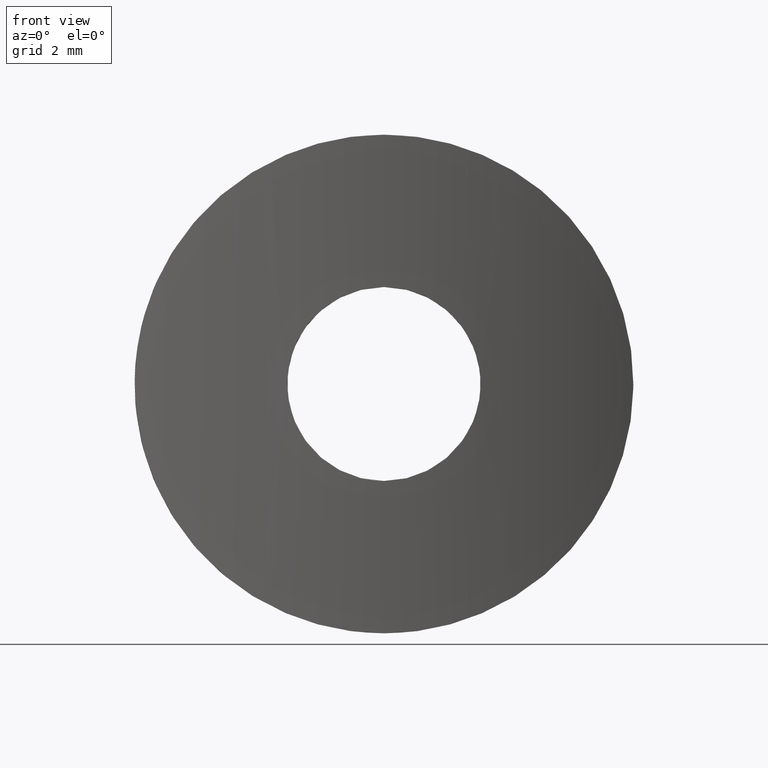
[diagram: clean part render]
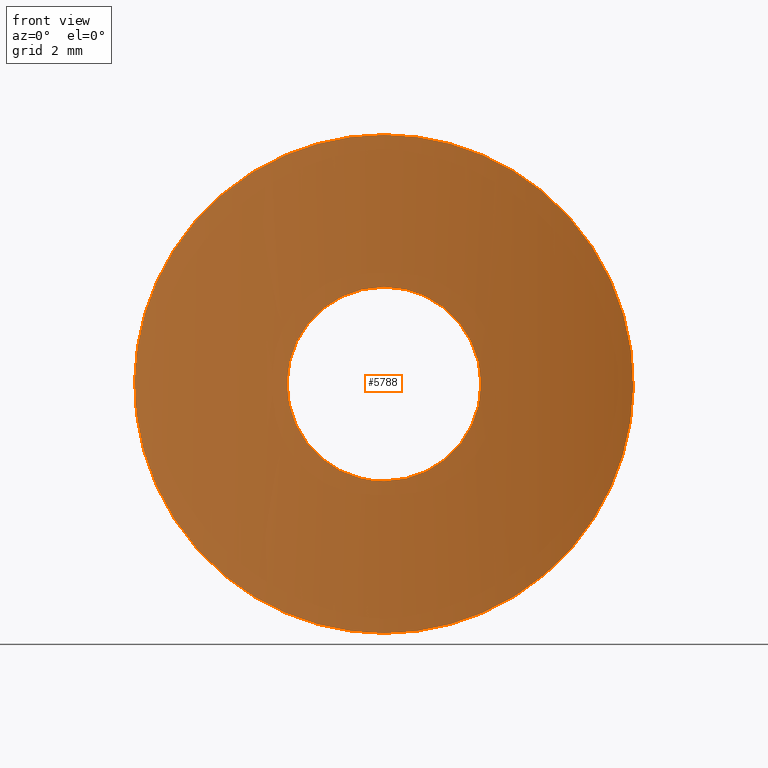
[diagram: same view with one face highlighted and labeled with its STEP entity id]
A machine part, front view. The second image highlights one B-rep face of the part: STEP entity #5788.
In plain terms, the highlighted cylindrical surface (partial cylindrical patch) has radius 21.2 mm, axis along (-0, -0, 1).
Its self-contained STEP definition (entity closure, byte-faithful):
#3 = CARTESIAN_POINT ( 'NONE',  ( 8.325286420081219774, -1.702034945779434150, 3.446954527647875022 ) ) ;
#43 = CARTESIAN_POINT ( 'NONE',  ( 7.254618379325947330, -1.278246409192320687, -5.343986036388352012 ) ) ;
#61 = CARTESIAN_POINT ( 'NONE',  ( -7.736212241592220984, -1.460268368390549076, -4.619470464599940485 ) ) ;
#77 = CARTESIAN_POINT ( 'NONE',  ( 6.408348769267516509, -0.9894555068876267345, 6.334097105854316290 ) ) ;
#99 = CARTESIAN_POINT ( 'NONE',  ( -8.324705470766970095, -1.701784759971366467, -3.448391093984752409 ) ) ;
#109 = VERTEX_POINT ( 'NONE', #4354 ) ;
#119 = CARTESIAN_POINT ( 'NONE',  ( 8.737649480167293703, -1.883869969110991471, -2.201068361710543542 ) ) ;
#170 = CARTESIAN_POINT ( 'NONE',  ( 3.738979152164578323, -0.3313106756515576956, -8.189536316924305837 ) ) ;
#186 = CARTESIAN_POINT ( 'NONE',  ( -0.6062546657228191638, 1.717782817031721088E-15, -9.000000000000000000 ) ) ;
#241 = VERTEX_POINT ( 'NONE', #1890 ) ;
#569 = CARTESIAN_POINT ( 'NONE',  ( -0.4594096712122993087, -0.003793977811193192939, 3.477223792388970836 ) ) ;
#614 = CARTESIAN_POINT ( 'NONE',  ( -3.320236974390956330, -0.2614271514902220539, 1.130472858457361340 ) ) ;
#664 = CARTESIAN_POINT ( 'NONE',  ( -1.128499140721176630, -0.02899396188345702494, -3.320996702802382572 ) ) ;
#698 = B_SPLINE_CURVE_WITH_KNOTS ( 'NONE', 3,
 ( #9622, #2712, #7603, #1712, #9586, #5686, #3683, #3597 ),
 .UNSPECIFIED., .F., .F.,
 ( 4, 2, 2, 4 ),
 ( 0.05330800722056778379, 0.05512174508001466827, 0.05602861400973810357, 0.05693548293946154581 ),
 .UNSPECIFIED. ) ;
#702 = CARTESIAN_POINT ( 'NONE',  ( -1.553547168764129571, -0.05593337979942272775, 3.144694623080806828 ) ) ;
#765 = VERTEX_POINT ( 'NONE', #11943 ) ;
#930 = CARTESIAN_POINT ( 'NONE',  ( -6.096080592182215874, -0.8924105569262656967, 6.635265254513756261 ) ) ;
#991 = CARTESIAN_POINT ( 'NONE',  ( 8.674852194879518308, -1.855961087635569884, 2.407347494578982783 ) ) ;
#1051 = CARTESIAN_POINT ( 'NONE',  ( -2.412123554527790148, -0.1290705256459501460, -8.692331396030924751 ) ) ;
#1112 = CARTESIAN_POINT ( 'NONE',  ( -8.868711480248640200, -1.944163354106136721, 1.547448648860504594 ) ) ;
#1130 = CARTESIAN_POINT ( 'NONE',  ( 8.967780133845078439, -1.990000845151914666, 0.8809174741159992994 ) ) ;
#1410 = B_SPLINE_CURVE_WITH_KNOTS ( 'NONE', 3,
 ( #1707, #3592, #569, #11564, #5561, #702, #3715, #4617, #12636, #7643, #1535, #11684, #6682, #614, #5681, #7555, #1630, #9499, #12725, #8480, #12598, #11606, #8574, #2622, #8618, #9582, #3636, #5610, #6596, #664, #7597, #1662, #3679, #2669 ),
 .UNSPECIFIED., .F., .F.,
 ( 4, 2, 2, 2, 2, 2, 2, 2, 2, 2, 2, 2, 2, 2, 2, 2, 4 ),
 ( 1.051311307589938344E-19, 0.0006850855612415010726, 0.001370171122483001928, 0.002055256683724502893, 0.002740342244966004724, 0.003425427806207505688, 0.004110513367449007520, 0.004795598928690508918, 0.005480684489932010316, 0.006165770051173511714, 0.006850855612415013111, 0.007535941173656515377, 0.008221026734898016775, 0.008906112296139518172, 0.009591197857381017836, 0.01027628341862251923, 0.01096136897986402063 ),
 .UNSPECIFIED. ) ;
#1535 = CARTESIAN_POINT ( 'NONE',  ( -2.781277343997013318, -0.1828361555684034911, 2.137157395139446248 ) ) ;
#1627 = CARTESIAN_POINT ( 'NONE',  ( 1.212652219086313155, -0.03252985708564427175, -8.923148120426748875 ) ) ;
#1630 = CARTESIAN_POINT ( 'NONE',  ( -3.499913013245484095, -0.2908965063671715146, 0.2300468168494983201 ) ) ;
#1662 = CARTESIAN_POINT ( 'NONE',  ( -0.4608885055692594768, -0.003818118714002292739, -3.477080409031306107 ) ) ;
#1707 = CARTESIAN_POINT ( 'NONE',  ( -1.001538272400470224E-16, -2.953729520031680717E-16, 3.500000000000000000 ) ) ;
#1712 = CARTESIAN_POINT ( 'NONE',  ( 1.520479799747443739, -0.05252348073265261652, 8.875742768130466587 ) ) ;
#1716 = CARTESIAN_POINT ( 'NONE',  ( 0.9086622993366548773, -0.01827193785772249224, -3.387856872820870890 ) ) ;
#1760 = CARTESIAN_POINT ( 'NONE',  ( 3.143803663488859979, -0.2342075826620027279, -1.555388342496398568 ) ) ;
#1851 = CARTESIAN_POINT ( 'NONE',  ( -3.939818330900121790, -0.3652902765261617501, 8.103713511911527334 ) ) ;
#1852 = CARTESIAN_POINT ( 'NONE',  ( -2.975587617592057033, -0.2078277686711706984, 8.499302316748147845 ) ) ;
#1881 = CARTESIAN_POINT ( 'NONE',  ( 2.634717834455309049, -0.1637296434643251419, -2.315231069476046510 ) ) ;
#1890 = CARTESIAN_POINT ( 'NONE',  ( 1.711870285715402075E-17, 0.000000000000000000, 9.000000000000000000 ) ) ;
#1935 = CARTESIAN_POINT ( 'NONE',  ( -7.978767912354337355, -1.551915153110567047, 4.254895545333862827 ) ) ;
#1969 = CARTESIAN_POINT ( 'NONE',  ( -6.986905837801116625, -1.182081130002816449, -5.689688094331717849 ) ) ;
#1993 = CARTESIAN_POINT ( 'NONE',  ( 5.089912997554004725, -0.6083890780568557144, 7.473153656820967328 ) ) ;
#2064 = CARTESIAN_POINT ( 'NONE',  ( -8.730438296520546260, -1.881037187961504209, 2.197417258610651736 ) ) ;
#2080 = CARTESIAN_POINT ( 'NONE',  ( 7.252124631889408590, -1.277327088336913885, 5.347474220808958734 ) ) ;
#2119 = CARTESIAN_POINT ( 'NONE',  ( 8.482914956562572328, -1.770646896408823556, 3.038697762261656887 ) ) ;
#2176 = CARTESIAN_POINT ( 'NONE',  ( 3.939515432733915024, -0.3682983042103756266, -8.094966016909065587 ) ) ;
#2249 = B_SPLINE_CURVE_WITH_KNOTS ( 'NONE', 3,
 ( #8764, #11721, #8639, #11796, #5789, #1852, #9821, #9895 ),
 .UNSPECIFIED., .F., .F.,
 ( 4, 2, 2, 4 ),
 ( 1.664682242909646275E-20, 0.001814698256128992153, 0.002722047384193487796, 0.003629396512257983438 ),
 .UNSPECIFIED. ) ;
#2346 = ORIENTED_EDGE ( 'NONE', *, *, #4991, .T. ) ;
#2406 = EDGE_CURVE ( 'NONE', #109, #12507, #3248, .T. ) ;
#2619 = B_SPLINE_CURVE_WITH_KNOTS ( 'NONE', 3,
 ( #5067, #170, #2176, #3040, #12087, #10926, #9116, #9079, #5963, #6061, #43, #6967, #6917, #9910, #10043, #4125, #4950, #119, #11000, #10005, #8984, #4041, #11959, #5931, #1130, #8019, #12052, #4085, #991, #2119, #3, #6005, #7938, #2080, #3141, #77, #10088, #1993, #5120, #3009 ),
 .UNSPECIFIED., .F., .F.,
 ( 4, 2, 2, 2, 2, 2, 2, 2, 2, 2, 2, 2, 2, 2, 2, 2, 2, 2, 2, 4 ),
 ( 0.03211005986015320890, 0.03277249571516616111, 0.03343493157017912026, 0.03475980328020503163, 0.03608467499023093605, 0.03740954670025684742, 0.03807198255526979963, 0.03873441841028275878, 0.04005929012030866321, 0.04138416183033458151, 0.04204659768534753372, 0.04270903354036048594, 0.04403390525038640424, 0.04469634110539935645, 0.04535877696041230867, 0.04668364867043822003, 0.04800852038046413139, 0.04933339209049004970, 0.05065826380051596106, 0.05330800722056778379 ),
 .UNSPECIFIED. ) ;
#2622 = CARTESIAN_POINT ( 'NONE',  ( -2.782973657628945219, -0.1830688020217748901, -2.134702079547750486 ) ) ;
#2669 = CARTESIAN_POINT ( 'NONE',  ( 4.286265286540114633E-16, 1.636711416830832039E-15, -3.500000000000000000 ) ) ;
#2712 = CARTESIAN_POINT ( 'NONE',  ( 2.978953606591919545, -0.2027233907619431230, 8.514311216986493847 ) ) ;
#2752 = CARTESIAN_POINT ( 'NONE',  ( 3.320079831224719946, -0.2613987316304178798, -1.131284351891470807 ) ) ;
#2879 = CARTESIAN_POINT ( 'NONE',  ( 3.500140659879554583, -0.2909346124321717242, 0.2291026041061293705 ) ) ;
#2939 = CARTESIAN_POINT ( 'NONE',  ( -8.828082600335466879, -1.925461494916844485, 1.764696307993757651 ) ) ;
#2955 = EDGE_LOOP ( 'NONE', ( #8562, #10641 ) ) ;
#2968 = CARTESIAN_POINT ( 'NONE',  ( 2.784709054118645444, -0.1832964154647766242, 2.132547625768210331 ) ) ;
#2990 = CARTESIAN_POINT ( 'NONE',  ( -8.999503959662272123, -2.004976458114370530, 0.4533054639374571870 ) ) ;
#2997 = EDGE_CURVE ( 'NONE', #241, #4533, #2249, .T. ) ;
#3009 = CARTESIAN_POINT ( 'NONE',  ( 3.536529139191802784, -0.2970585407783515874, 8.276047465284818827 ) ) ;
#3040 = CARTESIAN_POINT ( 'NONE',  ( 4.329756352961174670, -0.4458970969327287759, -7.893127807381156380 ) ) ;
#3046 = CARTESIAN_POINT ( 'NONE',  ( 1.554607559020375396, -0.05602574784963570975, 3.144062430167414046 ) ) ;
#3102 = B_SPLINE_CURVE_WITH_KNOTS ( 'NONE', 3,
 ( #7743, #1851, #6902, #5020, #4067, #930, #3979, #8924, #7868, #1935, #9893, #12916, #2064, #2939, #1112, #6866, #2990, #5862, #8882, #8051, #10948, #9059, #99, #10982, #61, #4978, #1969, #11897, #9988, #7031, #9935, #3947, #11984, #10903 ),
 .UNSPECIFIED., .F., .F.,
 ( 4, 2, 2, 2, 2, 2, 2, 2, 2, 2, 2, 2, 2, 2, 2, 2, 4 ),
 ( 0.003629396512257983438, 0.004955249946715591450, 0.006281103381173200328, 0.007606956815630807472, 0.008932810250088416351, 0.01158451711900363584, 0.01224744383623243768, 0.01291037055346124299, 0.01423622398791885360, 0.01556207742237646421, 0.01688793085683407483, 0.01821378429129168197, 0.01953963772574928912, 0.02086549116020689973, 0.02219134459466451034, 0.02351719802912212096, 0.02484305146357973157 ),
 .UNSPECIFIED. ) ;
#3141 = CARTESIAN_POINT ( 'NONE',  ( 6.987160647285993953, -1.182192209293612795, 5.689227204461292153 ) ) ;
#3161 = CARTESIAN_POINT ( 'NONE',  ( -2.986127374873986717, -0.2039371070523920138, -8.511245714924822181 ) ) ;
#3248 = B_SPLINE_CURVE_WITH_KNOTS ( 'NONE', 3,
 ( #7775, #10815, #12693, #1716, #5691, #7727, #6644, #8660, #12864, #1881, #9679, #3686, #1760, #2752, #6691, #8825, #8701, #2879, #9718, #3775, #7851, #6977, #6890, #2968, #3965, #8990, #10932, #11921, #3046, #3883, #5969, #12055, #10848, #12939 ),
 .UNSPECIFIED., .F., .F.,
 ( 4, 2, 2, 2, 2, 2, 2, 2, 2, 2, 2, 2, 2, 2, 2, 2, 4 ),
 ( 0.01096136897986402063, 0.01164628391295835855, 0.01233119884605269473, 0.01301611377914703264, 0.01370102871224136883, 0.01438594364533570674, 0.01507085857843004292, 0.01575577351152437910, 0.01644068844461871876, 0.01712560337771305494, 0.01781051831080739112, 0.01849543324390173077, 0.01918034817699606695, 0.01986526311009040313, 0.02055017804318474278, 0.02123509297627907549, 0.02192000790937341514 ),
 .UNSPECIFIED. ) ;
#3371 = B_SPLINE_CURVE_WITH_KNOTS ( 'NONE', 3,
 ( #5720, #5677, #8687, #1627, #9705, #12757, #6719, #7711 ),
 .UNSPECIFIED., .F., .F.,
 ( 4, 2, 2, 4 ),
 ( 0.02848027258681560744, 0.02938771940515000694, 0.03029516622348440991, 0.03211005986015320890 ),
 .UNSPECIFIED. ) ;
#3592 = CARTESIAN_POINT ( 'NONE',  ( -0.2316800455939980186, 5.646886315028662828E-19, 3.499999999999999556 ) ) ;
#3597 = CARTESIAN_POINT ( 'NONE',  ( 1.711870285715402075E-17, 0.000000000000000000, 9.000000000000000000 ) ) ;
#3636 = CARTESIAN_POINT ( 'NONE',  ( -2.135558272734896512, -0.1069784911190605758, -2.782319615980886507 ) ) ;
#3679 = CARTESIAN_POINT ( 'NONE',  ( -0.2286326805046276500, 6.660737695506108956E-16, -3.500000000000000444 ) ) ;
#3683 = CARTESIAN_POINT ( 'NONE',  ( 0.3068896625923121513, -4.235164736271501695E-19, 9.000000000000001776 ) ) ;
#3686 = CARTESIAN_POINT ( 'NONE',  ( 3.036135605263671877, -0.2181439507707302050, -1.756118456561458929 ) ) ;
#3715 = CARTESIAN_POINT ( 'NONE',  ( -1.754440010892975410, -0.07185804612670972091, 3.037138443562074741 ) ) ;
#3775 = CARTESIAN_POINT ( 'NONE',  ( 3.388749554086226468, -0.2725442862277637768, 0.9047317476669792802 ) ) ;
#3883 = CARTESIAN_POINT ( 'NONE',  ( 1.133783935372440377, -0.02928943502244587757, 3.319106388057619039 ) ) ;
#3947 = CARTESIAN_POINT ( 'NONE',  ( -4.327446838571765930, -0.4428089517646502937, -7.903573071571256214 ) ) ;
#3965 = CARTESIAN_POINT ( 'NONE',  ( 2.637453253092510774, -0.1640761116438959610, 2.312077070660482736 ) ) ;
#3979 = CARTESIAN_POINT ( 'NONE',  ( -6.407001631410156328, -0.9890386179552449475, 6.335384170830606898 ) ) ;
#4041 = CARTESIAN_POINT ( 'NONE',  ( 8.991786829785466395, -2.001351629390572207, -0.4440792921767917623 ) ) ;
#4067 = CARTESIAN_POINT ( 'NONE',  ( -5.428266630602044174, -0.7037976941601992165, 7.191861022797259473 ) ) ;
#4085 = CARTESIAN_POINT ( 'NONE',  ( 8.731381318865723884, -1.881463315577486917, 2.193724469505609065 ) ) ;
#4125 = CARTESIAN_POINT ( 'NONE',  ( 8.325999701593623570, -1.702335576957298979, -3.445346410578369767 ) ) ;
#4232 = CARTESIAN_POINT ( 'NONE',  ( 3.536529139191828541, -0.2970585407783417065, -8.276047465284845472 ) ) ;
#4354 = CARTESIAN_POINT ( 'NONE',  ( 4.286265286540114633E-16, 1.636711416830832039E-15, -3.500000000000000000 ) ) ;
#4455 = ORIENTED_EDGE ( 'NONE', *, *, #2997, .T. ) ;
#4533 = VERTEX_POINT ( 'NONE', #8195 ) ;
#4617 = CARTESIAN_POINT ( 'NONE',  ( -2.134627233006331171, -0.1068776907981085489, 2.783098319012921262 ) ) ;
#4950 = CARTESIAN_POINT ( 'NONE',  ( 8.483106834613938219, -1.770736085970567197, -3.037781888766408755 ) ) ;
#4978 = CARTESIAN_POINT ( 'NONE',  ( -7.255648715824005279, -1.278615850110074392, -5.342663093704675070 ) ) ;
#4991 = EDGE_CURVE ( 'NONE', #765, #241, #698, .T. ) ;
#5020 = CARTESIAN_POINT ( 'NONE',  ( -5.069946772384122724, -0.6116343676730731094, 7.448850926577253340 ) ) ;
#5067 = CARTESIAN_POINT ( 'NONE',  ( 3.536529139191828541, -0.2970585407783417065, -8.276047465284845472 ) ) ;
#5120 = CARTESIAN_POINT ( 'NONE',  ( 4.351107768067637771, -0.4348755586751987257, 7.927960885396752033 ) ) ;
#5155 = EDGE_CURVE ( 'NONE', #12323, #765, #2619, .T. ) ;
#5488 = CARTESIAN_POINT ( 'NONE',  ( -1.001538272400470224E-16, -2.953729520031680717E-16, 3.500000000000000000 ) ) ;
#5561 = CARTESIAN_POINT ( 'NONE',  ( -1.129841809637610162, -0.02906427362621000904, 3.320552749649249069 ) ) ;
#5610 = CARTESIAN_POINT ( 'NONE',  ( -1.756819704086358680, -0.07206233354295611682, -3.035703560799768219 ) ) ;
#5677 = CARTESIAN_POINT ( 'NONE',  ( 0.3025077931039403811, 1.678078147629175168E-15, -9.000000000000000000 ) ) ;
#5681 = CARTESIAN_POINT ( 'NONE',  ( -3.387625694201974902, -0.2723610604222985732, 0.9094494166235330690 ) ) ;
#5686 = CARTESIAN_POINT ( 'NONE',  ( 0.6150493392345318666, -0.006750340863308582247, 8.984131872875403602 ) ) ;
#5691 = CARTESIAN_POINT ( 'NONE',  ( 1.129014750062088401, -0.02903236630534340029, -3.320739115625998661 ) ) ;
#5720 = CARTESIAN_POINT ( 'NONE',  ( 1.711870285715402075E-17, 0.000000000000000000, -9.000000000000000000 ) ) ;
#5788 = ADVANCED_FACE ( 'NONE', ( #11411, #7321 ), #6550, .F. ) ;
#5789 = CARTESIAN_POINT ( 'NONE',  ( -2.395774399416440215, -0.1337786566541276645, 8.680583308081798677 ) ) ;
#5862 = CARTESIAN_POINT ( 'NONE',  ( -9.000485022732950924, -2.005436455884692659, -0.4333898004942154936 ) ) ;
#5931 = CARTESIAN_POINT ( 'NONE',  ( 9.000083227517286844, -2.005248063435561612, 0.4403249025801492800 ) ) ;
#5963 = CARTESIAN_POINT ( 'NONE',  ( 6.412175348067497893, -0.9906742402522878965, -6.330208572602527894 ) ) ;
#5969 = CARTESIAN_POINT ( 'NONE',  ( 0.9124969718379751793, -0.01843975711540257051, 3.386810402749445892 ) ) ;
#6005 = CARTESIAN_POINT ( 'NONE',  ( 7.951184012021561109, -1.546509011400343692, 4.239170001195247117 ) ) ;
#6061 = CARTESIAN_POINT ( 'NONE',  ( 6.990324177344665380, -1.183301764436832881, -5.685323312059368028 ) ) ;
#6083 = CARTESIAN_POINT ( 'NONE',  ( -3.536529139191820992, -0.2970585407783558063, -8.276047465284809945 ) ) ;
#6550 = CYLINDRICAL_SURFACE ( 'NONE', #8293, 21.19999999999999574 ) ;
#6596 = CARTESIAN_POINT ( 'NONE',  ( -1.551947390441320795, -0.05581720014041474665, -3.145471142441955248 ) ) ;
#6632 = ORIENTED_EDGE ( 'NONE', *, *, #9473, .T. ) ;
#6644 = CARTESIAN_POINT ( 'NONE',  ( 1.754329851924248729, -0.07184223432642973528, -3.037271006215209734 ) ) ;
#6682 = CARTESIAN_POINT ( 'NONE',  ( -3.145594963164852320, -0.2344797625678842479, 1.551507259903567970 ) ) ;
#6691 = CARTESIAN_POINT ( 'NONE',  ( 3.387485317793239581, -0.2723390009862270977, -0.9093969378530922798 ) ) ;
#6719 = CARTESIAN_POINT ( 'NONE',  ( 2.981871299482056870, -0.2032170297048315200, -8.513064425451235095 ) ) ;
#6866 = CARTESIAN_POINT ( 'NONE',  ( -8.966437089148390882, -1.989373801478621751, 0.8930669008316337587 ) ) ;
#6890 = CARTESIAN_POINT ( 'NONE',  ( 3.038670270378165394, -0.2185101323994163292, 1.751812455766851295 ) ) ;
#6902 = CARTESIAN_POINT ( 'NONE',  ( -4.326899356163050214, -0.4427578506482586773, 7.903649939288478699 ) ) ;
#6917 = CARTESIAN_POINT ( 'NONE',  ( 7.728219629093209697, -1.458469793322479946, -4.617619331277857953 ) ) ;
#6967 = CARTESIAN_POINT ( 'NONE',  ( 7.614420111628360743, -1.414221146129786444, -4.802866332756035916 ) ) ;
#6977 = CARTESIAN_POINT ( 'NONE',  ( 3.146001086128382251, -0.2345392948254741150, 1.550854493732335193 ) ) ;
#7030 = EDGE_CURVE ( 'NONE', #9681, #7930, #11971, .T. ) ;
#7031 = CARTESIAN_POINT ( 'NONE',  ( -5.429810668275199426, -0.7042392497046907618, -7.190548806686810401 ) ) ;
#7197 = CARTESIAN_POINT ( 'NONE',  ( 1.711870285715402075E-17, 0.000000000000000000, -9.000000000000000000 ) ) ;
#7312 = DIRECTION ( 'NONE',  ( 1.000000000000000000, 0.000000000000000000, 0.000000000000000000 ) ) ;
#7321 = FACE_BOUND ( 'NONE', #2955, .T. ) ;
#7555 = CARTESIAN_POINT ( 'NONE',  ( -3.477623765425729374, -0.2871280696435076774, 0.4574265313254871623 ) ) ;
#7597 = CARTESIAN_POINT ( 'NONE',  ( -0.9102956628579861320, -0.01835921451540096019, -3.387309875346087740 ) ) ;
#7603 = CARTESIAN_POINT ( 'NONE',  ( 2.405248076554948433, -0.1285674547779329380, 8.693529531788003695 ) ) ;
#7643 = CARTESIAN_POINT ( 'NONE',  ( -2.636545196268266000, -0.1639607859174544158, 2.313129485510660555 ) ) ;
#7711 = CARTESIAN_POINT ( 'NONE',  ( 3.536529139191828541, -0.2970585407783417065, -8.276047465284845472 ) ) ;
#7727 = CARTESIAN_POINT ( 'NONE',  ( 1.550284167767607801, -0.05570611602332130319, -3.146204312989764329 ) ) ;
#7743 = CARTESIAN_POINT ( 'NONE',  ( -3.536529139191779691, -0.2970585407783443155, 8.276047465284840143 ) ) ;
#7775 = CARTESIAN_POINT ( 'NONE',  ( 4.286265286540114633E-16, 1.636711416830832039E-15, -3.500000000000000000 ) ) ;
#7851 = CARTESIAN_POINT ( 'NONE',  ( 3.321299922214591582, -0.2615943242844910865, 1.127581181710695990 ) ) ;
#7868 = CARTESIAN_POINT ( 'NONE',  ( -7.252411954904890656, -1.277411947144067028, 5.347311400281633098 ) ) ;
#7874 = ORIENTED_EDGE ( 'NONE', *, *, #8582, .T. ) ;
#7930 = VERTEX_POINT ( 'NONE', #7197 ) ;
#7938 = CARTESIAN_POINT ( 'NONE',  ( 7.733527587557999183, -1.459210788976784690, 4.623996460979709511 ) ) ;
#8019 = CARTESIAN_POINT ( 'NONE',  ( 8.870104751981269686, -1.944805150208373856, 1.539647920849620988 ) ) ;
#8051 = CARTESIAN_POINT ( 'NONE',  ( -8.837161727733391814, -1.929563424177947795, -1.761012243944029443 ) ) ;
#8195 = CARTESIAN_POINT ( 'NONE',  ( -3.536529139191779691, -0.2970585407783443155, 8.276047465284840143 ) ) ;
#8293 = AXIS2_PLACEMENT_3D ( 'NONE', #12344, #11348, #7312 ) ;
#8480 = CARTESIAN_POINT ( 'NONE',  ( -3.387656699314872899, -0.2723665571756828108, -0.9089743022443408371 ) ) ;
#8562 = ORIENTED_EDGE ( 'NONE', *, *, #9851, .F. ) ;
#8574 = CARTESIAN_POINT ( 'NONE',  ( -3.036205482341161055, -0.2181555713371914618, -1.755947498213883629 ) ) ;
#8582 = EDGE_CURVE ( 'NONE', #4533, #9681, #3102, .T. ) ;
#8618 = CARTESIAN_POINT ( 'NONE',  ( -2.637868942245131798, -0.1641122301139398276, -2.311875462545449622 ) ) ;
#8639 = CARTESIAN_POINT ( 'NONE',  ( -1.216364610595696893, -0.02661044183596210713, 8.937815836037247053 ) ) ;
#8660 = CARTESIAN_POINT ( 'NONE',  ( 2.135982256492666931, -0.1070081875402642546, -2.782133748491723235 ) ) ;
#8687 = CARTESIAN_POINT ( 'NONE',  ( 0.6055347752070751044, -0.006471617693278200294, -8.984788557308700518 ) ) ;
#8701 = CARTESIAN_POINT ( 'NONE',  ( 3.499858033037155369, -0.2908873031609886528, -0.2333803563618633836 ) ) ;
#8764 = CARTESIAN_POINT ( 'NONE',  ( 1.711870285715402075E-17, 0.000000000000000000, 9.000000000000000000 ) ) ;
#8825 = CARTESIAN_POINT ( 'NONE',  ( 3.476880920004943754, -0.2870052183812636937, -0.4619076065047313939 ) ) ;
#8882 = CARTESIAN_POINT ( 'NONE',  ( -8.967462006814395536, -1.989852203035072042, -0.8838646286490374759 ) ) ;
#8924 = CARTESIAN_POINT ( 'NONE',  ( -6.984547120967750544, -1.181290466007106632, 5.692351360543773886 ) ) ;
#8984 = CARTESIAN_POINT ( 'NONE',  ( 8.958889126677330950, -1.985978160038693430, -0.8875485485010388143 ) ) ;
#8990 = CARTESIAN_POINT ( 'NONE',  ( 2.315613327473251992, -0.1262203575963262436, 2.634349058221115314 ) ) ;
#9059 = CARTESIAN_POINT ( 'NONE',  ( -8.485024214885042326, -1.771570017016957932, -3.032816774959728789 ) ) ;
#9079 = CARTESIAN_POINT ( 'NONE',  ( 6.095834884366065687, -0.8923402494448449129, -6.635474263192382871 ) ) ;
#9116 = CARTESIAN_POINT ( 'NONE',  ( 5.428409121140354898, -0.7038388497920831099, -7.191738040867655002 ) ) ;
#9337 = ORIENTED_EDGE ( 'NONE', *, *, #5155, .T. ) ;
#9473 = EDGE_CURVE ( 'NONE', #7930, #12323, #3371, .T. ) ;
#9499 = CARTESIAN_POINT ( 'NONE',  ( -3.500086483426496198, -0.2909255437676347422, -0.2273922750728697428 ) ) ;
#9582 = CARTESIAN_POINT ( 'NONE',  ( -2.311925044284296682, -0.1257994359616471658, -2.637825487099599631 ) ) ;
#9586 = CARTESIAN_POINT ( 'NONE',  ( 1.221494647225168650, -0.03304302383097435653, 8.921931518774888659 ) ) ;
#9622 = CARTESIAN_POINT ( 'NONE',  ( 3.536529139191802784, -0.2970585407783515874, 8.276047465284818827 ) ) ;
#9679 = CARTESIAN_POINT ( 'NONE',  ( 2.782413017037494551, -0.1829930654541342405, -2.135474010529256450 ) ) ;
#9681 = VERTEX_POINT ( 'NONE', #11333 ) ;
#9705 = CARTESIAN_POINT ( 'NONE',  ( 1.516719129729700688, -0.05222348434008157458, -8.876459674093192476 ) ) ;
#9718 = CARTESIAN_POINT ( 'NONE',  ( 3.477587720504707214, -0.2871233485583650769, 0.4566691600612162727 ) ) ;
#9821 = CARTESIAN_POINT ( 'NONE',  ( -3.260537776236864804, -0.2503640839642459204, 8.393984379173922150 ) ) ;
#9851 = EDGE_CURVE ( 'NONE', #12507, #109, #1410, .T. ) ;
#9893 = CARTESIAN_POINT ( 'NONE',  ( -8.350844510711889157, -1.711977935656837424, 3.470575901111829786 ) ) ;
#9895 = CARTESIAN_POINT ( 'NONE',  ( -3.536529139191779691, -0.2970585407783443155, 8.276047465284840143 ) ) ;
#9910 = CARTESIAN_POINT ( 'NONE',  ( 7.943289982050647957, -1.544020304301380486, -4.236971935845981641 ) ) ;
#9935 = CARTESIAN_POINT ( 'NONE',  ( -5.077129608634842306, -0.6133409390758622903, -7.444193601422150586 ) ) ;
#9988 = CARTESIAN_POINT ( 'NONE',  ( -6.093914555041149761, -0.8917933331739382741, -6.637095858168533091 ) ) ;
#10005 = CARTESIAN_POINT ( 'NONE',  ( 8.933974157075173395, -1.974355028653953958, -1.110749521118368444 ) ) ;
#10043 = CARTESIAN_POINT ( 'NONE',  ( 8.044899925377478667, -1.585467570273514815, -4.040761799539419385 ) ) ;
#10057 = CARTESIAN_POINT ( 'NONE',  ( -1.212522846755039518, -0.02614354205623056066, -8.938945882307917756 ) ) ;
#10088 = CARTESIAN_POINT ( 'NONE',  ( 6.091802589955552349, -0.8911262036554544741, 6.639183020544945357 ) ) ;
#10641 = ORIENTED_EDGE ( 'NONE', *, *, #2406, .F. ) ;
#10815 = CARTESIAN_POINT ( 'NONE',  ( 0.2285757370031697711, 6.608445175359642486E-16, -3.500000000000000000 ) ) ;
#10848 = CARTESIAN_POINT ( 'NONE',  ( 0.2316223431125108423, -2.507721281754212780E-34, 3.500000000000000000 ) ) ;
#10903 = CARTESIAN_POINT ( 'NONE',  ( -3.536529139191820992, -0.2970585407783558063, -8.276047465284809945 ) ) ;
#10926 = CARTESIAN_POINT ( 'NONE',  ( 5.076342617977857685, -0.6132212118312228011, -7.444466892397429092 ) ) ;
#10932 = CARTESIAN_POINT ( 'NONE',  ( 2.139729363453331867, -0.1073821299686600061, 2.779329940844840419 ) ) ;
#10948 = CARTESIAN_POINT ( 'NONE',  ( -8.740402880028945276, -1.885112347579089187, -2.190655384227395253 ) ) ;
#10982 = CARTESIAN_POINT ( 'NONE',  ( -7.950216528309121955, -1.546115501649479640, -4.241011608695666624 ) ) ;
#11000 = CARTESIAN_POINT ( 'NONE',  ( 8.835095934053603273, -1.928613048091446958, -1.771924035582861379 ) ) ;
#11199 = CARTESIAN_POINT ( 'NONE',  ( 1.711870285715402075E-17, 0.000000000000000000, -9.000000000000000000 ) ) ;
#11333 = CARTESIAN_POINT ( 'NONE',  ( -3.536529139191820992, -0.2970585407783558063, -8.276047465284809945 ) ) ;
#11348 = DIRECTION ( 'NONE',  ( -0.000000000000000000, -0.000000000000000000, 1.000000000000000000 ) ) ;
#11411 = FACE_OUTER_BOUND ( 'NONE', #12648, .T. ) ;
#11564 = CARTESIAN_POINT ( 'NONE',  ( -0.9073150819328874572, -0.01823930068197681525, 3.388055768498571041 ) ) ;
#11606 = CARTESIAN_POINT ( 'NONE',  ( -3.145673421795160518, -0.2344891794250014982, -1.551598169002267102 ) ) ;
#11684 = CARTESIAN_POINT ( 'NONE',  ( -3.037133782427943185, -0.2182818121215644169, 1.754640642258476602 ) ) ;
#11721 = CARTESIAN_POINT ( 'NONE',  ( -0.6141043289465434318, -4.517509052022936426E-18, 9.000000000000001776 ) ) ;
#11796 = CARTESIAN_POINT ( 'NONE',  ( -2.103028053761944349, -0.1024820164311717047, 8.756043438751159869 ) ) ;
#11857 = ORIENTED_EDGE ( 'NONE', *, *, #7030, .T. ) ;
#11897 = CARTESIAN_POINT ( 'NONE',  ( -6.405327563174131988, -0.9884758644843807396, -6.337285113163297900 ) ) ;
#11921 = CARTESIAN_POINT ( 'NONE',  ( 1.756803119078585107, -0.07204190744440214234, 3.035911637333461144 ) ) ;
#11943 = CARTESIAN_POINT ( 'NONE',  ( 3.536529139191802784, -0.2970585407783515874, 8.276047465284818827 ) ) ;
#11959 = CARTESIAN_POINT ( 'NONE',  ( 8.999958146016384219, -2.005189415571877021, -0.2227092285266176475 ) ) ;
#11971 = B_SPLINE_CURVE_WITH_KNOTS ( 'NONE', 3,
 ( #6083, #3161, #1051, #10057, #186, #11199 ),
 .UNSPECIFIED., .F., .F.,
 ( 4, 2, 4 ),
 ( 0.02484305146357973157, 0.02666166202519766951, 0.02848027258681560744 ),
 .UNSPECIFIED. ) ;
#11984 = CARTESIAN_POINT ( 'NONE',  ( -3.937798154644530868, -0.3649484867255212706, -8.104576775712773795 ) ) ;
#12052 = CARTESIAN_POINT ( 'NONE',  ( 8.829063795841202378, -1.925910868428000189, 1.759852059836612526 ) ) ;
#12055 = CARTESIAN_POINT ( 'NONE',  ( 0.4604287392392179545, -0.003793961591959829020, 3.477231773101689516 ) ) ;
#12087 = CARTESIAN_POINT ( 'NONE',  ( 4.519953649482768121, -0.4865696269654328776, -7.785714766693057953 ) ) ;
#12323 = VERTEX_POINT ( 'NONE', #4232 ) ;
#12344 = CARTESIAN_POINT ( 'NONE',  ( 0.000000000000000000, -21.19999999999999574, -9.000000000000000000 ) ) ;
#12507 = VERTEX_POINT ( 'NONE', #5488 ) ;
#12598 = CARTESIAN_POINT ( 'NONE',  ( -3.321415687190705235, -0.2616117364034125647, -1.127349097450809134 ) ) ;
#12636 = CARTESIAN_POINT ( 'NONE',  ( -2.314318039868941579, -0.1260765779430370603, 2.635501963391654989 ) ) ;
#12648 = EDGE_LOOP ( 'NONE', ( #4455, #7874, #11857, #6632, #9337, #2346 ) ) ;
#12693 = CARTESIAN_POINT ( 'NONE',  ( 0.4560354843136224523, -0.003696017705627840672, -3.477825901623345040 ) ) ;
#12725 = CARTESIAN_POINT ( 'NONE',  ( -3.477221059810630344, -0.2870615854480851326, -0.4597672191043781220 ) ) ;
#12757 = CARTESIAN_POINT ( 'NONE',  ( 2.407864776124343020, -0.1287460952358053523, -8.693105329918775936 ) ) ;
#12864 = CARTESIAN_POINT ( 'NONE',  ( 2.311922951615709376, -0.1258115020708103771, -2.637621132394980972 ) ) ;
#12916 = CARTESIAN_POINT ( 'NONE',  ( -8.673143937105528778, -1.855193209865075410, 2.413590285594501061 ) ) ;
#12939 = CARTESIAN_POINT ( 'NONE',  ( -1.001538272400470224E-16, -2.953729520031680717E-16, 3.500000000000000000 ) ) ;